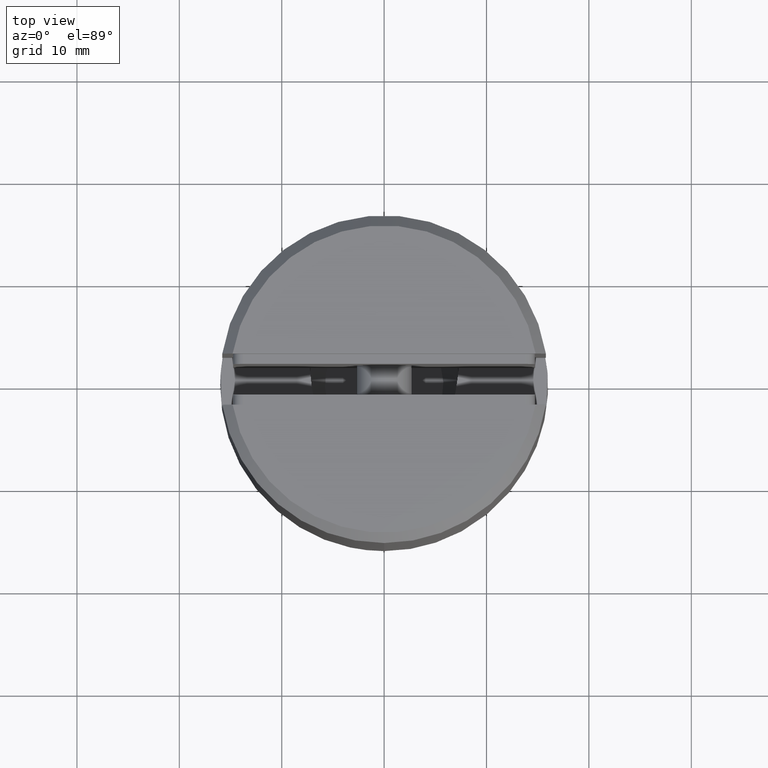
[diagram: clean part render]
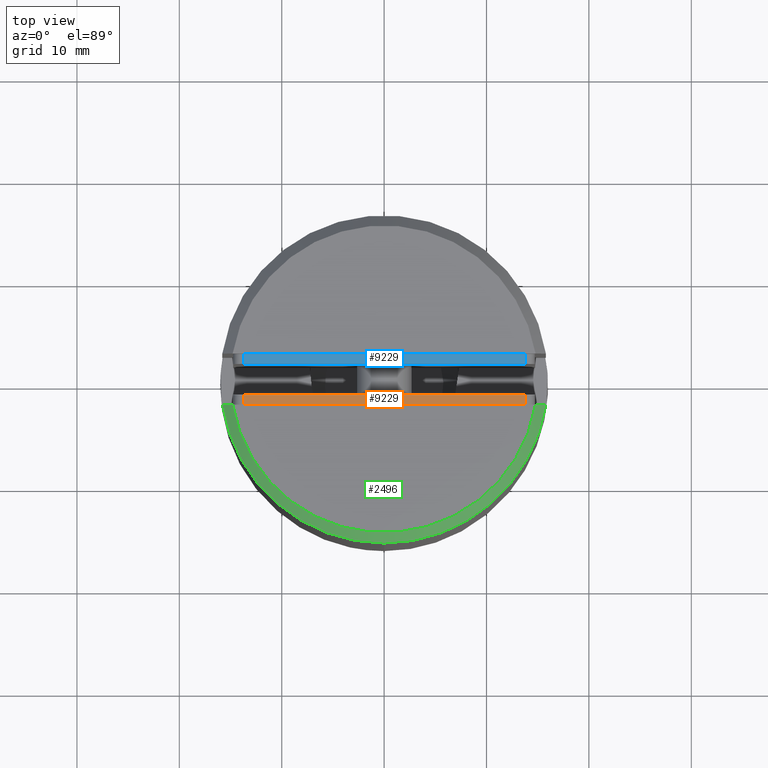
[diagram: same view with three faces highlighted in distinct colors, each labeled with its STEP entity id]
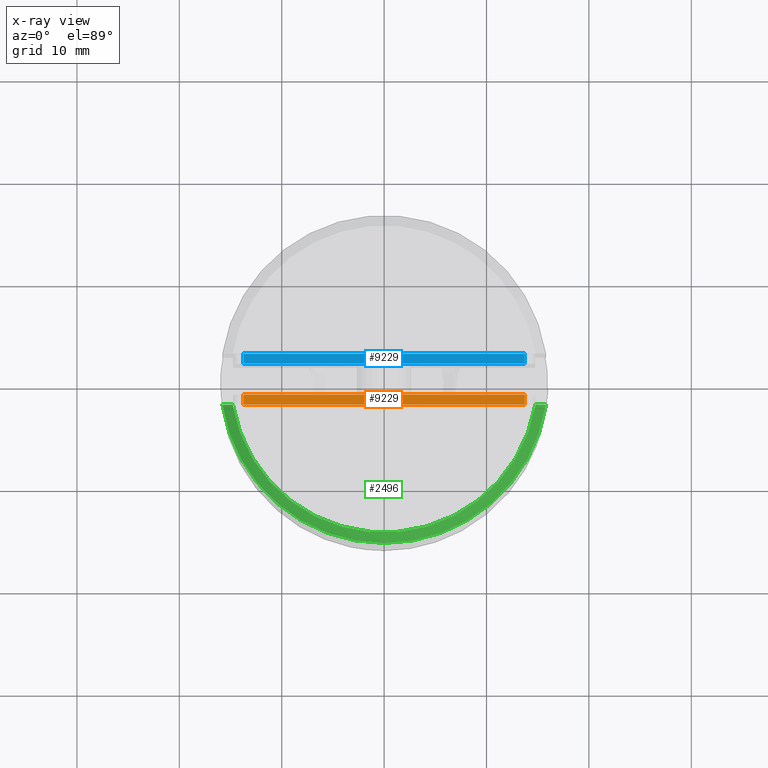
[diagram: x-ray of the same camera — body ghosted, the three highlighted faces saturated]
A machine part, top view with three faces highlighted in distinct colors.
The next image is the same camera in x-ray (body ghosted, the three faces saturated) — at least one of them is partly hidden behind the body in this view.
Their STEP definitions:

[orange] entity #9229 — the highlighted planar face has unit normal (-0, 0, -1).
#141 = CARTESIAN_POINT ( 'NONE',  ( 13.74999999999999822, 1.000000000000000000, 11.24999999999999822 ) ) ;
#1102 = LINE ( 'NONE', #3548, #2601 ) ;
#1146 = CARTESIAN_POINT ( 'NONE',  ( -13.74999999999999822, 1.000000000000000000, 11.24999999999999822 ) ) ;
#1219 = VERTEX_POINT ( 'NONE', #7545 ) ;
#1305 = VECTOR ( 'NONE', #13651, 1000.000000000000000 ) ;
#1389 = CARTESIAN_POINT ( 'NONE',  ( -14.75000000000000000, 1.000000000000000000, 11.24999999999999822 ) ) ;
#1932 = DIRECTION ( 'NONE',  ( -0.000000000000000000, 1.000000000000000000, -0.000000000000000000 ) ) ;
#1955 = LINE ( 'NONE', #1389, #6516 ) ;
#2601 = VECTOR ( 'NONE', #1932, 1000.000000000000000 ) ;
#3344 = EDGE_CURVE ( 'NONE', #1219, #11683, #1102, .T. ) ;
#3375 = CARTESIAN_POINT ( 'NONE',  ( -14.75000000000000000, 0.000000000000000000, 11.24999999999999822 ) ) ;
#3399 = CARTESIAN_POINT ( 'NONE',  ( -14.75000000000000000, 1.000000000000000000, 11.24999999999999822 ) ) ;
#3548 = CARTESIAN_POINT ( 'NONE',  ( 13.74999999999999822, 1.000000000000000000, 11.24999999999999822 ) ) ;
#3615 = ORIENTED_EDGE ( 'NONE', *, *, #17485, .F. ) ;
#4951 = PLANE ( 'NONE',  #5415 ) ;
#5415 = AXIS2_PLACEMENT_3D ( 'NONE', #3399, #11315, #17462 ) ;
#5420 = LINE ( 'NONE', #18273, #1305 ) ;
#5932 = EDGE_CURVE ( 'NONE', #11379, #1219, #19575, .T. ) ;
#6516 = VECTOR ( 'NONE', #16821, 1000.000000000000000 ) ;
#6537 = VERTEX_POINT ( 'NONE', #1146 ) ;
#6714 = ORIENTED_EDGE ( 'NONE', *, *, #3344, .T. ) ;
#7545 = CARTESIAN_POINT ( 'NONE',  ( 13.74999999999999822, 0.000000000000000000, 11.24999999999999822 ) ) ;
#8749 = ORIENTED_EDGE ( 'NONE', *, *, #12366, .T. ) ;
#9229 = ADVANCED_FACE ( 'NONE', ( #15365 ), #4951, .F. ) ;
#9296 = DIRECTION ( 'NONE',  ( 1.000000000000000000, 0.000000000000000000, 0.000000000000000000 ) ) ;
#10337 = CARTESIAN_POINT ( 'NONE',  ( -13.74999999999999822, 0.000000000000000000, 11.24999999999999822 ) ) ;
#11315 = DIRECTION ( 'NONE',  ( 0.000000000000000000, 0.000000000000000000, -1.000000000000000000 ) ) ;
#11379 = VERTEX_POINT ( 'NONE', #10337 ) ;
#11683 = VERTEX_POINT ( 'NONE', #141 ) ;
#12366 = EDGE_CURVE ( 'NONE', #6537, #11379, #5420, .T. ) ;
#13651 = DIRECTION ( 'NONE',  ( 0.000000000000000000, -1.000000000000000000, 0.000000000000000000 ) ) ;
#15365 = FACE_OUTER_BOUND ( 'NONE', #16227, .T. ) ;
#15422 = VECTOR ( 'NONE', #9296, 1000.000000000000000 ) ;
#16227 = EDGE_LOOP ( 'NONE', ( #18631, #6714, #3615, #8749 ) ) ;
#16821 = DIRECTION ( 'NONE',  ( 1.000000000000000000, 0.000000000000000000, 0.000000000000000000 ) ) ;
#17462 = DIRECTION ( 'NONE',  ( -1.000000000000000000, 0.000000000000000000, -0.000000000000000000 ) ) ;
#17485 = EDGE_CURVE ( 'NONE', #6537, #11683, #1955, .T. ) ;
#18273 = CARTESIAN_POINT ( 'NONE',  ( -13.74999999999999822, 1.000000000000000000, 11.24999999999999822 ) ) ;
#18631 = ORIENTED_EDGE ( 'NONE', *, *, #5932, .T. ) ;
#19575 = LINE ( 'NONE', #3375, #15422 ) ;

[blue] entity #9229 — the highlighted planar face has unit normal (0, 0, -1).
#141 = CARTESIAN_POINT ( 'NONE',  ( 13.74999999999999822, 1.000000000000000000, 11.24999999999999822 ) ) ;
#1102 = LINE ( 'NONE', #3548, #2601 ) ;
#1146 = CARTESIAN_POINT ( 'NONE',  ( -13.74999999999999822, 1.000000000000000000, 11.24999999999999822 ) ) ;
#1219 = VERTEX_POINT ( 'NONE', #7545 ) ;
#1305 = VECTOR ( 'NONE', #13651, 1000.000000000000000 ) ;
#1389 = CARTESIAN_POINT ( 'NONE',  ( -14.75000000000000000, 1.000000000000000000, 11.24999999999999822 ) ) ;
#1932 = DIRECTION ( 'NONE',  ( -0.000000000000000000, 1.000000000000000000, -0.000000000000000000 ) ) ;
#1955 = LINE ( 'NONE', #1389, #6516 ) ;
#2601 = VECTOR ( 'NONE', #1932, 1000.000000000000000 ) ;
#3344 = EDGE_CURVE ( 'NONE', #1219, #11683, #1102, .T. ) ;
#3375 = CARTESIAN_POINT ( 'NONE',  ( -14.75000000000000000, 0.000000000000000000, 11.24999999999999822 ) ) ;
#3399 = CARTESIAN_POINT ( 'NONE',  ( -14.75000000000000000, 1.000000000000000000, 11.24999999999999822 ) ) ;
#3548 = CARTESIAN_POINT ( 'NONE',  ( 13.74999999999999822, 1.000000000000000000, 11.24999999999999822 ) ) ;
#3615 = ORIENTED_EDGE ( 'NONE', *, *, #17485, .F. ) ;
#4951 = PLANE ( 'NONE',  #5415 ) ;
#5415 = AXIS2_PLACEMENT_3D ( 'NONE', #3399, #11315, #17462 ) ;
#5420 = LINE ( 'NONE', #18273, #1305 ) ;
#5932 = EDGE_CURVE ( 'NONE', #11379, #1219, #19575, .T. ) ;
#6516 = VECTOR ( 'NONE', #16821, 1000.000000000000000 ) ;
#6537 = VERTEX_POINT ( 'NONE', #1146 ) ;
#6714 = ORIENTED_EDGE ( 'NONE', *, *, #3344, .T. ) ;
#7545 = CARTESIAN_POINT ( 'NONE',  ( 13.74999999999999822, 0.000000000000000000, 11.24999999999999822 ) ) ;
#8749 = ORIENTED_EDGE ( 'NONE', *, *, #12366, .T. ) ;
#9229 = ADVANCED_FACE ( 'NONE', ( #15365 ), #4951, .F. ) ;
#9296 = DIRECTION ( 'NONE',  ( 1.000000000000000000, 0.000000000000000000, 0.000000000000000000 ) ) ;
#10337 = CARTESIAN_POINT ( 'NONE',  ( -13.74999999999999822, 0.000000000000000000, 11.24999999999999822 ) ) ;
#11315 = DIRECTION ( 'NONE',  ( 0.000000000000000000, 0.000000000000000000, -1.000000000000000000 ) ) ;
#11379 = VERTEX_POINT ( 'NONE', #10337 ) ;
#11683 = VERTEX_POINT ( 'NONE', #141 ) ;
#12366 = EDGE_CURVE ( 'NONE', #6537, #11379, #5420, .T. ) ;
#13651 = DIRECTION ( 'NONE',  ( 0.000000000000000000, -1.000000000000000000, 0.000000000000000000 ) ) ;
#15365 = FACE_OUTER_BOUND ( 'NONE', #16227, .T. ) ;
#15422 = VECTOR ( 'NONE', #9296, 1000.000000000000000 ) ;
#16227 = EDGE_LOOP ( 'NONE', ( #18631, #6714, #3615, #8749 ) ) ;
#16821 = DIRECTION ( 'NONE',  ( 1.000000000000000000, 0.000000000000000000, 0.000000000000000000 ) ) ;
#17462 = DIRECTION ( 'NONE',  ( -1.000000000000000000, 0.000000000000000000, -0.000000000000000000 ) ) ;
#17485 = EDGE_CURVE ( 'NONE', #6537, #11683, #1955, .T. ) ;
#18273 = CARTESIAN_POINT ( 'NONE',  ( -13.74999999999999822, 1.000000000000000000, 11.24999999999999822 ) ) ;
#18631 = ORIENTED_EDGE ( 'NONE', *, *, #5932, .T. ) ;
#19575 = LINE ( 'NONE', #3375, #15422 ) ;

[green] entity #2496 — the highlighted conical surface has half-angle 45 deg.
#772 = EDGE_LOOP ( 'NONE', ( #4560, #823, #11101, #19203 ) ) ;
#823 = ORIENTED_EDGE ( 'NONE', *, *, #15603, .F. ) ;
#1430 = DIRECTION ( 'NONE',  ( 0.000000000000000000, -1.917242093807529592E-17, -1.000000000000000000 ) ) ;
#1639 = CONICAL_SURFACE ( 'NONE', #6117, 15.00000000000000000, 0.7853981633974447263 ) ;
#2496 = ADVANCED_FACE ( 'NONE', ( #3566 ), #1639, .T. ) ;
#3566 = FACE_OUTER_BOUND ( 'NONE', #772, .T. ) ;
#3848 = CARTESIAN_POINT ( 'NONE',  ( -15.12810841561664787, -2.500000000000001332, 39.66681727430518833 ) ) ;
#4560 = ORIENTED_EDGE ( 'NONE', *, *, #16588, .F. ) ;
#5138 = CIRCLE ( 'NONE', #11773, 16.00000000000000000 ) ;
#5576 = CARTESIAN_POINT ( 'NONE',  ( 0.000000000000000000, 4.793105234518837415E-16, 40.00000000000000000 ) ) ;
#5591 = CARTESIAN_POINT ( 'NONE',  ( -15.80348062927910568, -2.500000000000001332, 38.99999999999999289 ) ) ;
#5840 = CARTESIAN_POINT ( 'NONE',  ( 15.80348062927910568, -2.500000000000001332, 38.99999999999999289 ) ) ;
#6037 = CARTESIAN_POINT ( 'NONE',  ( 0.000000000000000000, 4.601381025138083840E-16, 38.99999999999999289 ) ) ;
#6117 = AXIS2_PLACEMENT_3D ( 'NONE', #11173, #1430, #15698 ) ;
#6271 = CARTESIAN_POINT ( 'NONE',  ( -14.79019945774903988, -2.500000000000001332, 40.00000000000000000 ) ) ;
#7373 = DIRECTION ( 'NONE',  ( 0.000000000000000000, -1.917242093807529592E-17, -1.000000000000000000 ) ) ;
#8495 = CIRCLE ( 'NONE', #18005, 15.00000000000000000 ) ;
#9137 = DIRECTION ( 'NONE',  ( 0.000000000000000000, 1.000000000000000000, 0.000000000000000000 ) ) ;
#9847 = CARTESIAN_POINT ( 'NONE',  ( -15.80348062927910568, -2.500000000000001332, 38.99999999999999289 ) ) ;
#10757 = VERTEX_POINT ( 'NONE', #14140 ) ;
#11101 = ORIENTED_EDGE ( 'NONE', *, *, #14519, .F. ) ;
#11173 = CARTESIAN_POINT ( 'NONE',  ( 0.000000000000000000, 4.793105234518837415E-16, 40.00000000000000000 ) ) ;
#11656 = CARTESIAN_POINT ( 'NONE',  ( 14.79019945774903810, -2.500000000000001332, 40.00000000000000000 ) ) ;
#11764 = CARTESIAN_POINT ( 'NONE',  ( -15.46585946293022218, -2.500000000000001776, 39.33347434765182271 ) ) ;
#11773 = AXIS2_PLACEMENT_3D ( 'NONE', #6037, #7373, #9137 ) ;
#12988 = CARTESIAN_POINT ( 'NONE',  ( 15.12810841561665143, -2.500000000000001332, 39.66681727430518833 ) ) ;
#13144 = DIRECTION ( 'NONE',  ( 0.000000000000000000, 0.000000000000000000, 1.000000000000000000 ) ) ;
#13223 = B_SPLINE_CURVE_WITH_KNOTS ( 'NONE', 3,
 ( #5591, #11764, #3848, #16361 ),
 .UNSPECIFIED., .F., .F.,
 ( 4, 4 ),
 ( 3.469446951953614189E-18, 0.001423635744345220144 ),
 .UNSPECIFIED. ) ;
#14140 = CARTESIAN_POINT ( 'NONE',  ( 14.79019945774903810, -2.500000000000001332, 40.00000000000000000 ) ) ;
#14519 = EDGE_CURVE ( 'NONE', #10757, #15598, #17102, .T. ) ;
#14572 = CARTESIAN_POINT ( 'NONE',  ( 15.80348062927910568, -2.500000000000001332, 38.99999999999999289 ) ) ;
#14858 = DIRECTION ( 'NONE',  ( -1.000000000000000000, 0.000000000000000000, 0.000000000000000000 ) ) ;
#15578 = EDGE_CURVE ( 'NONE', #17136, #10757, #8495, .T. ) ;
#15598 = VERTEX_POINT ( 'NONE', #5840 ) ;
#15603 = EDGE_CURVE ( 'NONE', #15598, #20015, #5138, .T. ) ;
#15698 = DIRECTION ( 'NONE',  ( 0.000000000000000000, 1.000000000000000000, 0.000000000000000000 ) ) ;
#16323 = CARTESIAN_POINT ( 'NONE',  ( 15.46585946293022218, -2.500000000000001332, 39.33347434765181561 ) ) ;
#16361 = CARTESIAN_POINT ( 'NONE',  ( -14.79019945774903988, -2.500000000000001332, 40.00000000000000000 ) ) ;
#16588 = EDGE_CURVE ( 'NONE', #20015, #17136, #13223, .T. ) ;
#17102 = B_SPLINE_CURVE_WITH_KNOTS ( 'NONE', 3,
 ( #11656, #12988, #16323, #14572 ),
 .UNSPECIFIED., .F., .F.,
 ( 4, 4 ),
 ( 0.000000000000000000, 0.001423635744345217542 ),
 .UNSPECIFIED. ) ;
#17136 = VERTEX_POINT ( 'NONE', #6271 ) ;
#18005 = AXIS2_PLACEMENT_3D ( 'NONE', #5576, #13144, #14858 ) ;
#19203 = ORIENTED_EDGE ( 'NONE', *, *, #15578, .F. ) ;
#20015 = VERTEX_POINT ( 'NONE', #9847 ) ;